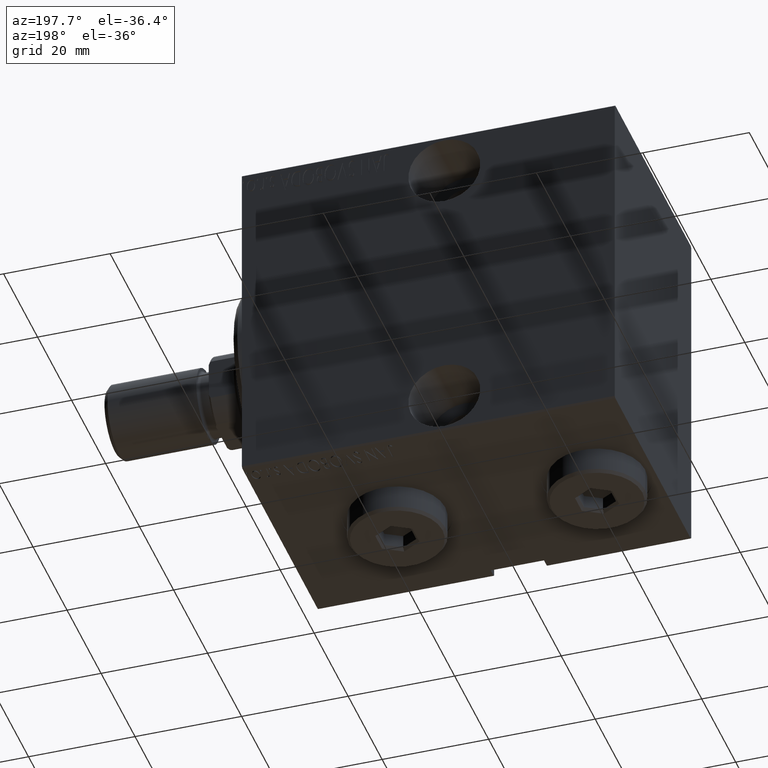
[diagram: clean part render]
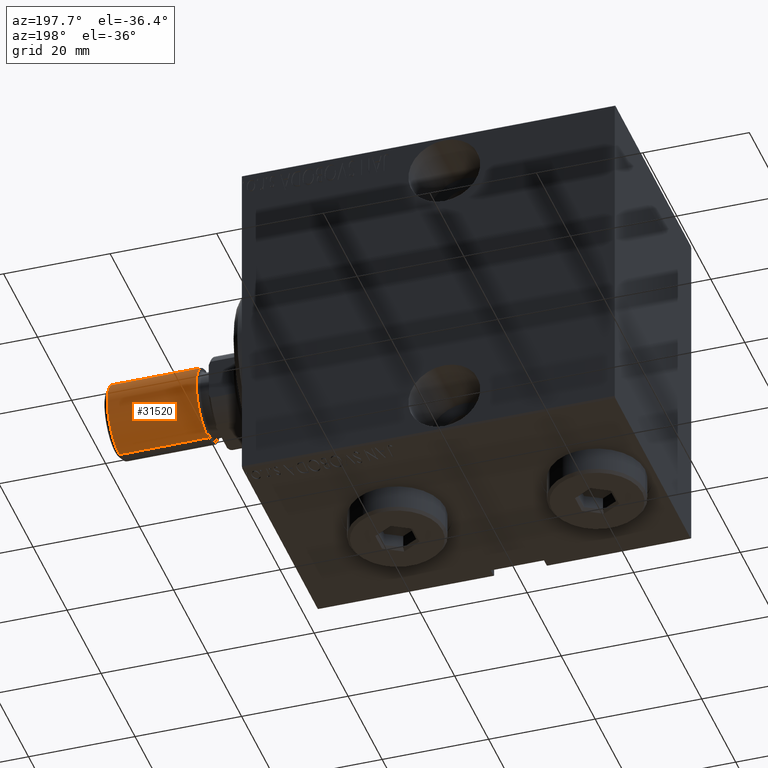
[diagram: same view with one face highlighted and labeled with its STEP entity id]
A machine part, auxiliary view. The second image highlights one B-rep face of the part: STEP entity #31520.
In plain terms, the highlighted cylindrical surface (partial cylindrical patch) has radius 7 mm, axis along (1, -0, -0).
Its self-contained STEP definition (entity closure, byte-faithful):
#2092 = ORIENTED_EDGE ( 'NONE', *, *, #17520, .T. ) ;
#2184 = CYLINDRICAL_SURFACE ( 'NONE', #15553, 7.000000000000000000 ) ;
#2471 = EDGE_LOOP ( 'NONE', ( #28723, #2092, #33857, #29193 ) ) ;
#4324 = LINE ( 'NONE', #31348, #14620 ) ;
#5444 = EDGE_CURVE ( 'NONE', #22921, #24158, #42287, .T. ) ;
#6248 = CARTESIAN_POINT ( 'NONE',  ( 0.000000000000000000, 0.000000000000000000, 17.50000000000000000 ) ) ;
#6287 = CIRCLE ( 'NONE', #33632, 7.000000000000000000 ) ;
#7915 = EDGE_CURVE ( 'NONE', #30139, #24158, #4324, .T. ) ;
#8461 = AXIS2_PLACEMENT_3D ( 'NONE', #18153, #32118, #17714 ) ;
#9303 = CARTESIAN_POINT ( 'NONE',  ( -7.000000000000000000, 0.000000000000000000, 17.50000000000000000 ) ) ;
#9400 = CARTESIAN_POINT ( 'NONE',  ( 7.000000000000000000, 8.572527594031473190E-16, 17.50000000000000000 ) ) ;
#11082 = DIRECTION ( 'NONE',  ( -0.000000000000000000, -0.000000000000000000, -1.000000000000000000 ) ) ;
#13014 = DIRECTION ( 'NONE',  ( -1.000000000000000000, 0.000000000000000000, 0.000000000000000000 ) ) ;
#13662 = DIRECTION ( 'NONE',  ( 1.000000000000000000, 0.000000000000000000, 0.000000000000000000 ) ) ;
#14620 = VECTOR ( 'NONE', #11082, 1000.000000000000000 ) ;
#15553 = AXIS2_PLACEMENT_3D ( 'NONE', #6248, #23365, #13014 ) ;
#17520 = EDGE_CURVE ( 'NONE', #34921, #22921, #34607, .T. ) ;
#17714 = DIRECTION ( 'NONE',  ( 1.000000000000000000, 0.000000000000000000, 0.000000000000000000 ) ) ;
#18153 = CARTESIAN_POINT ( 'NONE',  ( 0.000000000000000000, 0.000000000000000000, 0.7999999999999986011 ) ) ;
#19398 = CARTESIAN_POINT ( 'NONE',  ( 7.000000000000000000, 8.572527594031473190E-16, 0.7999999999999986011 ) ) ;
#19604 = VECTOR ( 'NONE', #40697, 1000.000000000000000 ) ;
#22921 = VERTEX_POINT ( 'NONE', #19398 ) ;
#23365 = DIRECTION ( 'NONE',  ( -0.000000000000000000, -0.000000000000000000, -1.000000000000000000 ) ) ;
#24007 = CARTESIAN_POINT ( 'NONE',  ( 7.000000000000000000, 8.572527594031473190E-16, 17.50000000000000000 ) ) ;
#24158 = VERTEX_POINT ( 'NONE', #37826 ) ;
#28723 = ORIENTED_EDGE ( 'NONE', *, *, #38332, .F. ) ;
#29193 = ORIENTED_EDGE ( 'NONE', *, *, #7915, .F. ) ;
#30139 = VERTEX_POINT ( 'NONE', #9303 ) ;
#31348 = CARTESIAN_POINT ( 'NONE',  ( -7.000000000000000000, 0.000000000000000000, 17.50000000000000000 ) ) ;
#31520 = ADVANCED_FACE ( 'NONE', ( #43656 ), #2184, .T. ) ;
#32118 = DIRECTION ( 'NONE',  ( -0.000000000000000000, -0.000000000000000000, 1.000000000000000000 ) ) ;
#33632 = AXIS2_PLACEMENT_3D ( 'NONE', #41371, #43856, #13662 ) ;
#33857 = ORIENTED_EDGE ( 'NONE', *, *, #5444, .T. ) ;
#34607 = LINE ( 'NONE', #24007, #19604 ) ;
#34921 = VERTEX_POINT ( 'NONE', #9400 ) ;
#37826 = CARTESIAN_POINT ( 'NONE',  ( -7.000000000000000000, 0.000000000000000000, 0.7999999999999986011 ) ) ;
#38332 = EDGE_CURVE ( 'NONE', #34921, #30139, #6287, .T. ) ;
#40697 = DIRECTION ( 'NONE',  ( -0.000000000000000000, -0.000000000000000000, -1.000000000000000000 ) ) ;
#41371 = CARTESIAN_POINT ( 'NONE',  ( 0.000000000000000000, 0.000000000000000000, 17.50000000000000000 ) ) ;
#42287 = CIRCLE ( 'NONE', #8461, 7.000000000000000000 ) ;
#43656 = FACE_OUTER_BOUND ( 'NONE', #2471, .T. ) ;
#43856 = DIRECTION ( 'NONE',  ( 0.000000000000000000, 0.000000000000000000, 1.000000000000000000 ) ) ;